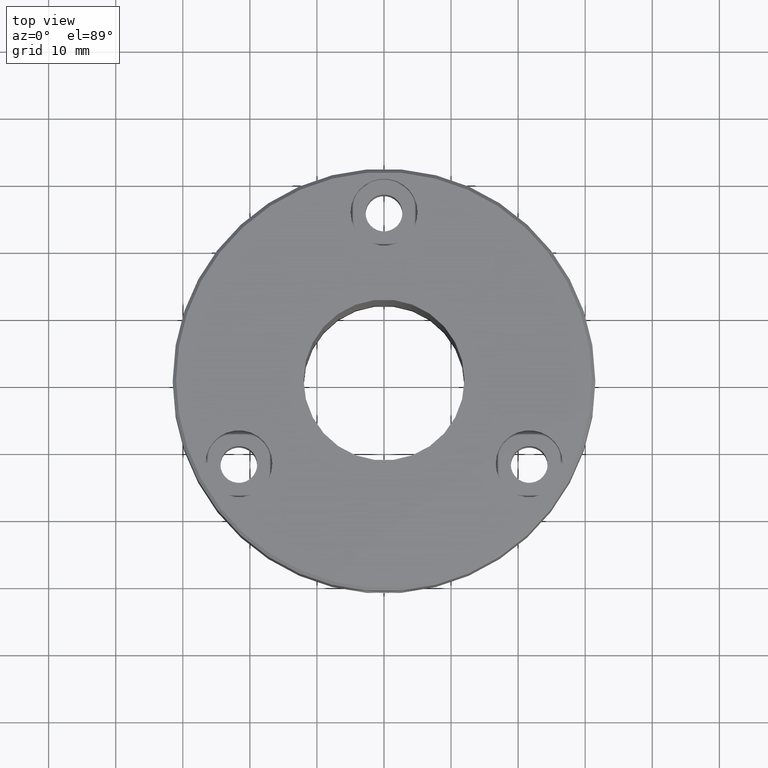
[diagram: clean part render]
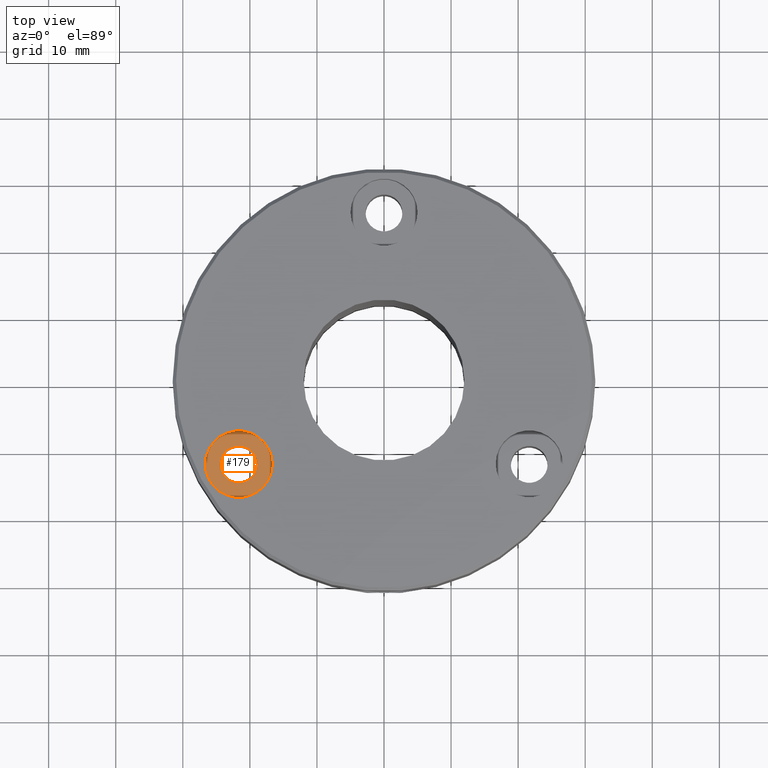
[diagram: same view with one face highlighted and labeled with its STEP entity id]
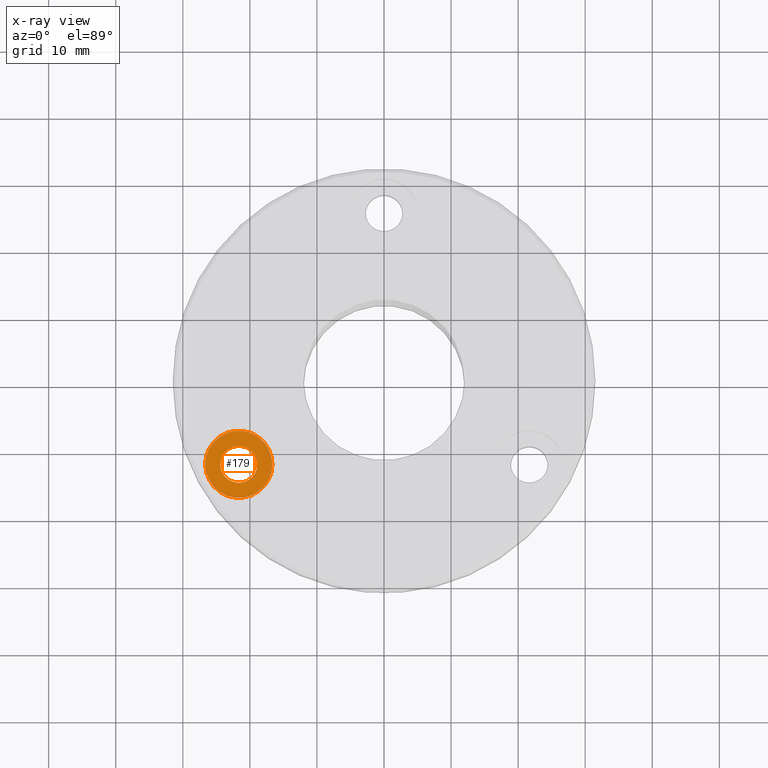
[diagram: x-ray of the same camera — body ghosted, the highlighted face saturated]
A machine part, top view. The second image highlights one B-rep face of the part: STEP entity #179.
The next image is the same camera in x-ray: the body ghosted, the highlighted face saturated — about 0% of this face is hidden behind the body in this view.
In plain terms, the highlighted planar face has unit normal (0, 0, -1).
Its self-contained STEP definition (entity closure, byte-faithful):
#3 = CIRCLE ( 'NONE', #771, 2.750000000000005773 ) ;
#18 = EDGE_CURVE ( 'NONE', #1236, #1199, #418, .T. ) ;
#32 = DIRECTION ( 'NONE',  ( -0.000000000000000000, -0.000000000000000000, 1.000000000000000000 ) ) ;
#94 = CIRCLE ( 'NONE', #1135, 4.999999999999997335 ) ;
#114 = ORIENTED_EDGE ( 'NONE', *, *, #143, .T. ) ;
#130 = ORIENTED_EDGE ( 'NONE', *, *, #18, .T. ) ;
#139 = CARTESIAN_POINT ( 'NONE',  ( -18.90063509461099400, -12.49999999999995381, -5.400000000000000355 ) ) ;
#143 = EDGE_CURVE ( 'NONE', #1199, #1236, #94, .T. ) ;
#172 = CIRCLE ( 'NONE', #1217, 2.750000000000005773 ) ;
#179 = ADVANCED_FACE ( 'NONE', ( #562, #1139 ), #958, .F. ) ;
#183 = CARTESIAN_POINT ( 'NONE',  ( -26.65063509461099756, -12.49999999999995381, -5.400000000000000355 ) ) ;
#202 = AXIS2_PLACEMENT_3D ( 'NONE', #852, #270, #659 ) ;
#255 = ORIENTED_EDGE ( 'NONE', *, *, #800, .F. ) ;
#257 = CARTESIAN_POINT ( 'NONE',  ( -21.65063509461100111, -12.49999999999995381, -5.400000000000000355 ) ) ;
#270 = DIRECTION ( 'NONE',  ( 0.000000000000000000, 0.000000000000000000, -1.000000000000000000 ) ) ;
#392 = CARTESIAN_POINT ( 'NONE',  ( -21.65063509461100111, -12.49999999999995381, -5.400000000000000355 ) ) ;
#418 = CIRCLE ( 'NONE', #1177, 4.999999999999997335 ) ;
#476 = CARTESIAN_POINT ( 'NONE',  ( -21.65063509461100111, -12.49999999999995381, -5.400000000000000355 ) ) ;
#485 = DIRECTION ( 'NONE',  ( 1.000000000000000000, 0.000000000000000000, 0.000000000000000000 ) ) ;
#499 = DIRECTION ( 'NONE',  ( 1.000000000000000000, 0.000000000000000000, 0.000000000000000000 ) ) ;
#511 = ORIENTED_EDGE ( 'NONE', *, *, #811, .F. ) ;
#515 = EDGE_LOOP ( 'NONE', ( #255, #511 ) ) ;
#562 = FACE_BOUND ( 'NONE', #515, .T. ) ;
#612 = CARTESIAN_POINT ( 'NONE',  ( -16.65063509461100466, -12.49999999999995381, -5.400000000000000355 ) ) ;
#659 = DIRECTION ( 'NONE',  ( -1.000000000000000000, 0.000000000000000000, -0.000000000000000000 ) ) ;
#771 = AXIS2_PLACEMENT_3D ( 'NONE', #392, #32, #499 ) ;
#793 = CARTESIAN_POINT ( 'NONE',  ( -24.40063509461100821, -12.49999999999995381, -5.400000000000000355 ) ) ;
#800 = EDGE_CURVE ( 'NONE', #836, #806, #172, .T. ) ;
#806 = VERTEX_POINT ( 'NONE', #793 ) ;
#811 = EDGE_CURVE ( 'NONE', #806, #836, #3, .T. ) ;
#836 = VERTEX_POINT ( 'NONE', #139 ) ;
#852 = CARTESIAN_POINT ( 'NONE',  ( -18.90063509461099400, -12.49999999999995381, -5.400000000000000355 ) ) ;
#862 = DIRECTION ( 'NONE',  ( -0.000000000000000000, -0.000000000000000000, 1.000000000000000000 ) ) ;
#921 = DIRECTION ( 'NONE',  ( -0.000000000000000000, -0.000000000000000000, 1.000000000000000000 ) ) ;
#958 = PLANE ( 'NONE',  #202 ) ;
#973 = DIRECTION ( 'NONE',  ( 1.000000000000000000, 0.000000000000000000, 0.000000000000000000 ) ) ;
#986 = DIRECTION ( 'NONE',  ( -0.000000000000000000, -0.000000000000000000, 1.000000000000000000 ) ) ;
#1128 = DIRECTION ( 'NONE',  ( 1.000000000000000000, 0.000000000000000000, 0.000000000000000000 ) ) ;
#1135 = AXIS2_PLACEMENT_3D ( 'NONE', #476, #862, #485 ) ;
#1139 = FACE_OUTER_BOUND ( 'NONE', #1160, .T. ) ;
#1160 = EDGE_LOOP ( 'NONE', ( #130, #114 ) ) ;
#1177 = AXIS2_PLACEMENT_3D ( 'NONE', #257, #921, #1128 ) ;
#1186 = CARTESIAN_POINT ( 'NONE',  ( -21.65063509461100111, -12.49999999999995381, -5.400000000000000355 ) ) ;
#1199 = VERTEX_POINT ( 'NONE', #183 ) ;
#1217 = AXIS2_PLACEMENT_3D ( 'NONE', #1186, #986, #973 ) ;
#1236 = VERTEX_POINT ( 'NONE', #612 ) ;